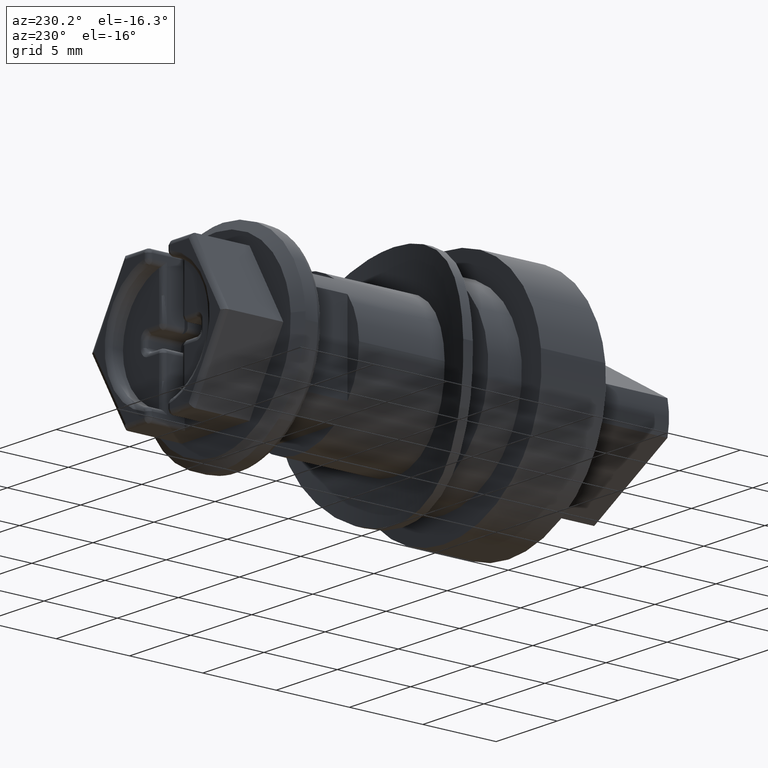
[diagram: clean part render]
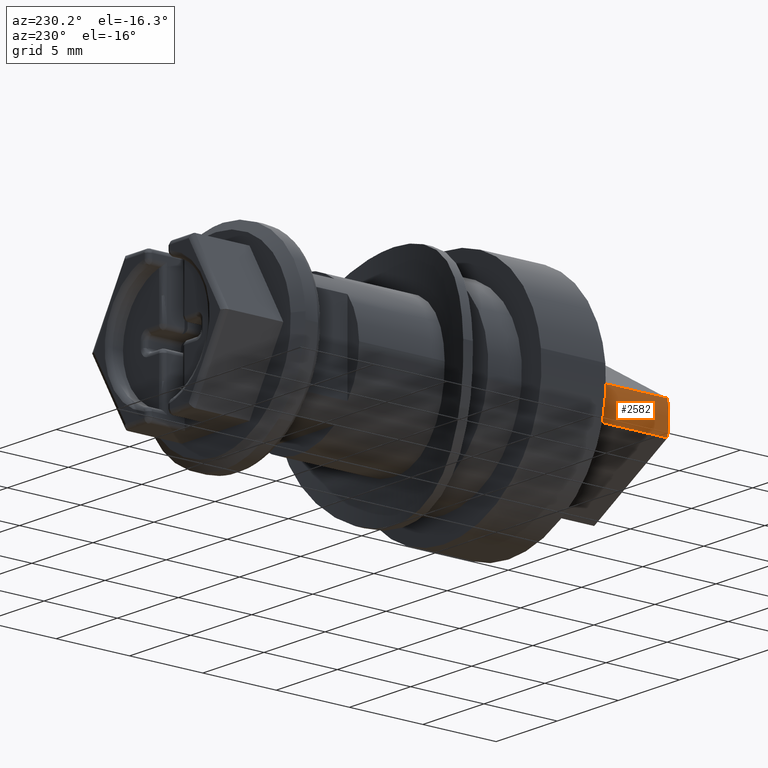
[diagram: same view with one face highlighted and labeled with its STEP entity id]
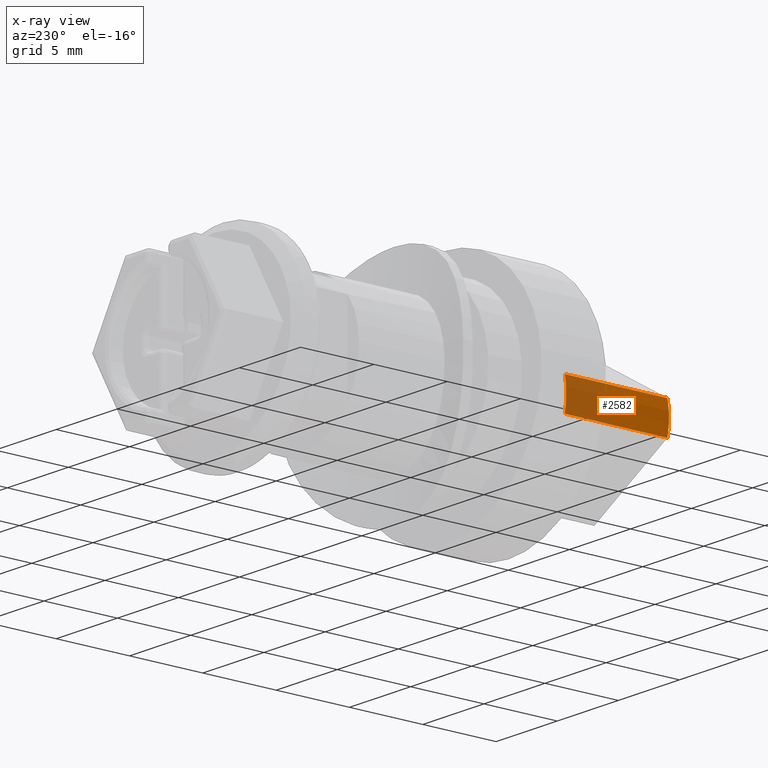
[diagram: x-ray of the same camera — body ghosted, the highlighted face saturated]
A machine part, auxiliary view. The second image highlights one B-rep face of the part: STEP entity #2582.
The next image is the same camera in x-ray: the body ghosted, the highlighted face saturated — about 38% of this face is hidden behind the body in this view.
In plain terms, the highlighted face is a freeform B-spline surface patch.
Its self-contained STEP definition (entity closure, byte-faithful):
#2331=CARTESIAN_POINT('',(-4.625000219675700,0.0,1.082531806148524));
#2332=VERTEX_POINT('',#2331);
#2333=CARTESIAN_POINT('',(-4.625000219675600,0.0,-1.082531806148434));
#2334=VERTEX_POINT('',#2333);
#2335=CARTESIAN_POINT('',(-4.625000219675700,0.0,1.082531806148524));
#2336=CARTESIAN_POINT('',(-4.878378610088994,0.0,3.361027E-014));
#2337=CARTESIAN_POINT('',(-4.625000219675598,0.0,-1.082531806148434));
#2345=(BOUNDED_CURVE()B_SPLINE_CURVE(2,(#2335,#2336,#2337),.UNSPECIFIED.,.F.,.U.)CURVE()GEOMETRIC_REPRESENTATION_ITEM()QUASI_UNIFORM_CURVE()RATIONAL_B_SPLINE_CURVE((1.0,0.973684210526296,1.0))REPRESENTATION_ITEM(''));
#2346=EDGE_CURVE('',#2332,#2334,#2345,.T.);
#2406=CARTESIAN_POINT('',(-4.625000219675700,-7.000000332482050,1.082531806148524));
#2407=VERTEX_POINT('',#2406);
#2408=CARTESIAN_POINT('',(-4.625000219675700,-7.000000332482050,1.082531806148524));
#2409=CARTESIAN_POINT('',(-4.625000219675700,0.0,1.082531806148524));
#2410=QUASI_UNIFORM_CURVE('',1,(#2408,#2409),.UNSPECIFIED.,.F.,.U.);
#2411=EDGE_CURVE('',#2407,#2332,#2410,.T.);
#2535=CARTESIAN_POINT('',(-4.625000219675600,-7.000000332482050,-1.082531806148434));
#2536=VERTEX_POINT('',#2535);
#2542=CARTESIAN_POINT('',(-4.625000219675600,-7.000000332482050,-1.082531806148434));
#2543=CARTESIAN_POINT('',(-4.625000219675600,0.0,-1.082531806148434));
#2544=QUASI_UNIFORM_CURVE('',1,(#2542,#2543),.UNSPECIFIED.,.F.,.U.);
#2545=EDGE_CURVE('',#2536,#2334,#2544,.T.);
#2550=CARTESIAN_POINT('',(-4.599241067071107,-7.175000340794101,1.187216808459574));
#2551=CARTESIAN_POINT('',(-4.599241067071107,0.179375008519853,1.187216808459574));
#2552=CARTESIAN_POINT('',(-4.905751430609086,-7.175000340794101,-0.000194826400872));
#2553=CARTESIAN_POINT('',(-4.905751430609086,0.179375008519853,-0.000194826400872));
#2554=CARTESIAN_POINT('',(-4.599146754602767,-7.175000340794101,-1.187582112087055));
#2555=CARTESIAN_POINT('',(-4.599146754602767,0.179375008519853,-1.187582112087055));
#2563=(BOUNDED_SURFACE()B_SPLINE_SURFACE(1,2,((#2550,#2552,#2554),(#2551,#2553,#2555)),.UNSPECIFIED.,.F.,.F.,.U.)B_SPLINE_SURFACE_WITH_KNOTS((2,2),(3,3),(0.0,7.354375349313955),(0.0,2.413103350677847),.UNSPECIFIED.)GEOMETRIC_REPRESENTATION_ITEM()RATIONAL_B_SPLINE_SURFACE(((0.999529168987753,0.966028923576740,0.995883656877138),(0.999529168987753,0.966028923576740,0.995883656877138)))REPRESENTATION_ITEM('')SURFACE());
#2564=ORIENTED_EDGE('',*,*,#2346,.T.);
#2565=ORIENTED_EDGE('',*,*,#2545,.F.);
#2566=CARTESIAN_POINT('',(-4.625000219675700,-7.000000332482050,1.082531806148524));
#2567=CARTESIAN_POINT('',(-4.878378610088994,-7.000000332482050,3.361027E-014));
#2568=CARTESIAN_POINT('',(-4.625000219675598,-7.000000332482050,-1.082531806148434));
#2576=(BOUNDED_CURVE()B_SPLINE_CURVE(2,(#2566,#2567,#2568),.UNSPECIFIED.,.F.,.U.)CURVE()GEOMETRIC_REPRESENTATION_ITEM()QUASI_UNIFORM_CURVE()RATIONAL_B_SPLINE_CURVE((1.0,0.973684210526296,1.0))REPRESENTATION_ITEM(''));
#2577=EDGE_CURVE('',#2407,#2536,#2576,.T.);
#2578=ORIENTED_EDGE('',*,*,#2577,.F.);
#2579=ORIENTED_EDGE('',*,*,#2411,.T.);
#2580=EDGE_LOOP('',(#2564,#2565,#2578,#2579));
#2581=FACE_OUTER_BOUND('',#2580,.T.);
#2582=ADVANCED_FACE('',(#2581),#2563,.T.);